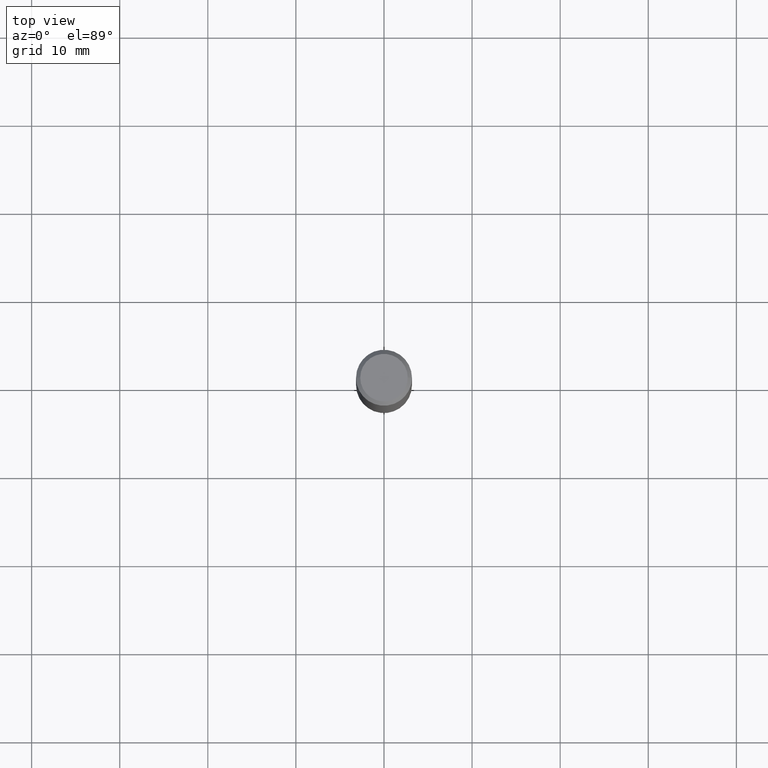
[diagram: clean part render]
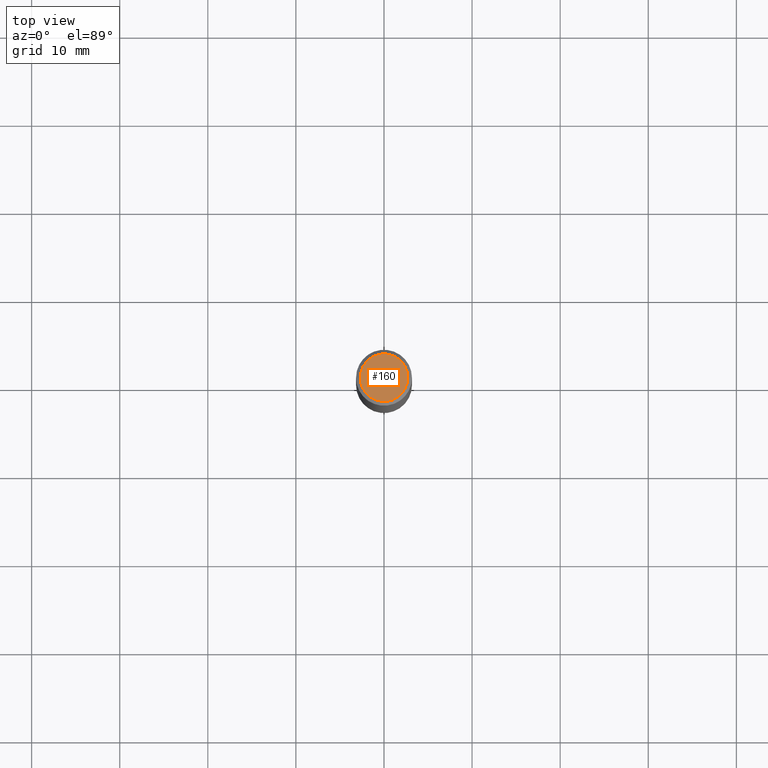
[diagram: same view with one face highlighted and labeled with its STEP entity id]
A machine part, top view. The second image highlights one B-rep face of the part: STEP entity #160.
In plain terms, the highlighted planar face has unit normal (0, -0, -1).
Its self-contained STEP definition (entity closure, byte-faithful):
#6 = DIRECTION ( 'NONE',  ( -1.000000000000000000, 6.982962677686265922E-15, -4.876176775795935793E-29 ) ) ;
#42 = DIRECTION ( 'NONE',  ( 2.438088387897960049E-29, -3.491481338843145188E-15, -1.000000000000000000 ) ) ;
#57 = EDGE_LOOP ( 'NONE', ( #252, #103 ) ) ;
#63 = DIRECTION ( 'NONE',  ( 1.000000000000000000, -6.982962677686266711E-15, 4.877714189860772023E-29 ) ) ;
#71 = CIRCLE ( 'NONE', #210, 0.1062499999999999972 ) ;
#88 = AXIS2_PLACEMENT_3D ( 'NONE', #381, #42, #6 ) ;
#103 = ORIENTED_EDGE ( 'NONE', *, *, #366, .T. ) ;
#119 = PLANE ( 'NONE',  #88 ) ;
#136 = EDGE_CURVE ( 'NONE', #272, #405, #386, .T. ) ;
#160 = ADVANCED_FACE ( 'NONE', ( #458 ), #119, .F. ) ;
#210 = AXIS2_PLACEMENT_3D ( 'NONE', #292, #433, #63 ) ;
#243 = DIRECTION ( 'NONE',  ( -2.445468806185136597E-29, 3.491481338843145583E-15, 1.000000000000000000 ) ) ;
#245 = CARTESIAN_POINT ( 'NONE',  ( -0.1062499999999999972, 7.746724220558198188E-16, -2.602374448188655674E-17 ) ) ;
#252 = ORIENTED_EDGE ( 'NONE', *, *, #136, .T. ) ;
#272 = VERTEX_POINT ( 'NONE', #245 ) ;
#275 = AXIS2_PLACEMENT_3D ( 'NONE', #353, #243, #466 ) ;
#292 = CARTESIAN_POINT ( 'NONE',  ( 6.364025535057318316E-46, -9.086141822531067035E-32, -2.602374448188125350E-17 ) ) ;
#353 = CARTESIAN_POINT ( 'NONE',  ( 6.364025535057318316E-46, -9.086141822531067035E-32, -2.602374448188125350E-17 ) ) ;
#366 = EDGE_CURVE ( 'NONE', #405, #272, #71, .T. ) ;
#367 = CARTESIAN_POINT ( 'NONE',  ( 0.1062499999999999972, -8.259777185439880671E-16, -2.602374448187577153E-17 ) ) ;
#381 = CARTESIAN_POINT ( 'NONE',  ( 3.182012767528659158E-46, -4.543070911265533518E-32, -1.301187224094062675E-17 ) ) ;
#386 = CIRCLE ( 'NONE', #275, 0.1062499999999999972 ) ;
#405 = VERTEX_POINT ( 'NONE', #367 ) ;
#433 = DIRECTION ( 'NONE',  ( -2.445468806185136597E-29, 3.491481338843145583E-15, 1.000000000000000000 ) ) ;
#458 = FACE_OUTER_BOUND ( 'NONE', #57, .T. ) ;
#466 = DIRECTION ( 'NONE',  ( 1.000000000000000000, -6.982962677686266711E-15, 4.877714189860772023E-29 ) ) ;